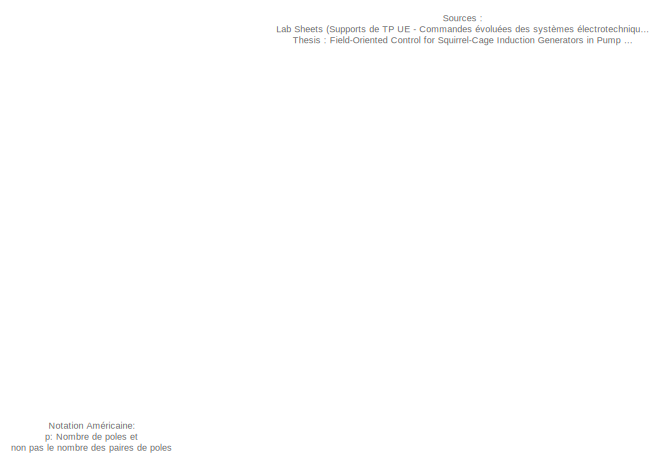
[diagram: root canvas - part 1/4, top center region]
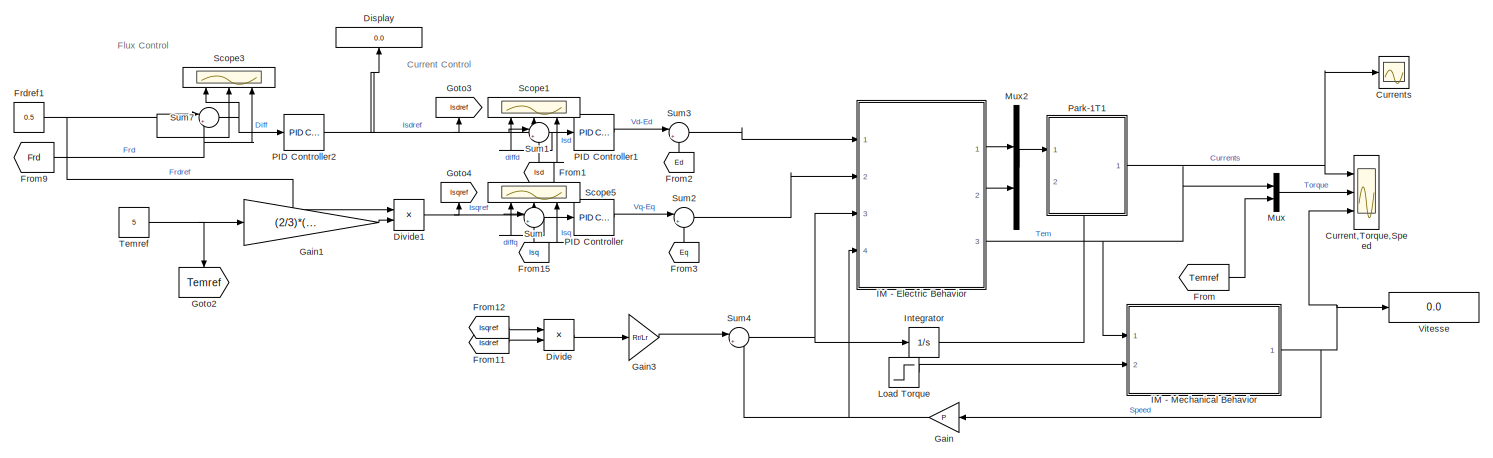
[diagram: root canvas - part 2/4, middle right region]
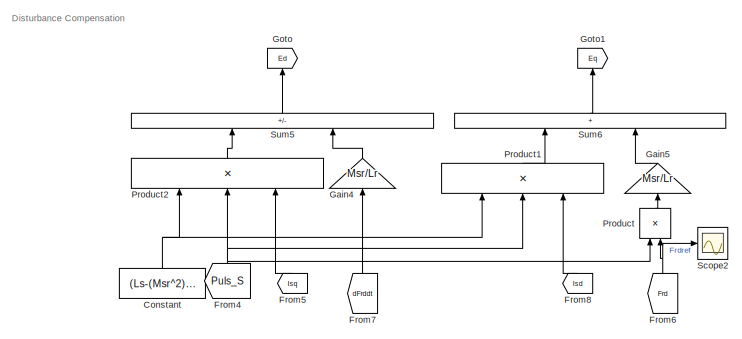
[diagram: root canvas - part 3/4, bottom center region]
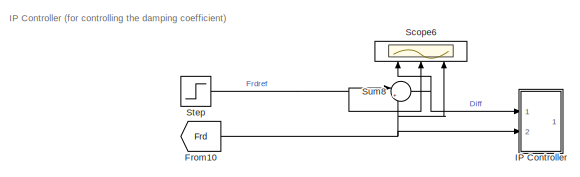
[diagram: root canvas - part 4/4, bottom left region]
MODEL slx_86597fa362f5
KIND model
CONFIG AbsTol = auto
CONFIG EnableMultiTasking = off
CONFIG FixedStep = 0.0001
CONFIG MaxStep = auto
CONFIG MinStep = auto
CONFIG RelTol = 1e-3
CONFIG SampleTimeConstraint = Unconstrained
CONFIG SolverName = FixedStepAuto
CONFIG StartTime = 0.0
CONFIG StopTime = 2
BLOCK [Constant] Constant
  NameLocation = right
  Value = (Ls-(Msr^2)/Lr)
BLOCK [Scope] Current,Torque,Speed
  Floating = off
  NumInputPorts = 3
  Ports = [3]
  ScopeSpecificationString = Simulink.scopes.TimeScopeBlockCfg('CurrentConfiguration', extmgr.ConfigurationSet(extmgr.Configuration('Core','General UI',true,'FigureColor','[1 1 1]'),extmgr.Configuration('Core','Source UI',true),extmgr.Configuration('Sources','WiredSimulink',true,'DataLoggingVariableName','ScopeData1'),extmgr.Configuration('Visuals','Time Domain',true,'SerializedDisplays',{struct('MinYLimReal','-2988.17313','M...<+3429ch>
BLOCK [Scope] Currents
  Floating = off
  NumInputPorts = 1
  Ports = [1]
  ScopeSpecificationString = Simulink.scopes.TimeScopeBlockCfg('CurrentConfiguration', extmgr.ConfigurationSet(extmgr.Configuration('Core','General UI',true),extmgr.Configuration('Core','Source UI',true),extmgr.Configuration('Sources','WiredSimulink',true),extmgr.Configuration('Visuals','Time Domain',true,'SerializedDisplays',{struct('MinYLimReal','-6.45339','MaxYLimReal','6.77917','YLabelReal','','MinYLimMag','0.00000','MaxY...<+1427ch>
BLOCK [Display] Display
  Decimation = 1
  NameLocation = right
  Ports = [1]
BLOCK [Product] Divide
  Inputs = */
  Ports = [2, 1]
BLOCK [Product] Divide1
  Inputs = /*
  Ports = [2, 1]
BLOCK [Constant] Frdref1
  Value = 0.5
BLOCK [From] From
  GotoTag = Temref
BLOCK [From] From1
  GotoTag = Isd
  NameLocation = right
  TagVisibility = global
BLOCK [From] From10
  Commented = on
  GotoTag = Frd
  TagVisibility = global
BLOCK [From] From11
  GotoTag = Isdref
BLOCK [From] From12
  GotoTag = Isqref
BLOCK [From] From15
  GotoTag = Isq
  NameLocation = right
  TagVisibility = global
BLOCK [From] From2
  GotoTag = Ed
  NameLocation = right
BLOCK [From] From3
  GotoTag = Eq
  NameLocation = right
BLOCK [From] From4
  GotoTag = Puls_S
  NameLocation = right
  TagVisibility = global
BLOCK [From] From5
  GotoTag = Isq
  NameLocation = right
  TagVisibility = global
BLOCK [From] From6
  GotoTag = Frd
  NameLocation = right
  TagVisibility = global
BLOCK [From] From7
  GotoTag = dFrddt
  NameLocation = right
  TagVisibility = global
BLOCK [From] From8
  GotoTag = Isd
  NameLocation = right
  TagVisibility = global
BLOCK [From] From9
  GotoTag = Frd
  TagVisibility = global
BLOCK [Gain] Gain
  Gain = P
BLOCK [Gain] Gain1
  Gain = (2/3)*(1/P)*(Lr/Msr)
BLOCK [Gain] Gain3
  Gain = Rr/Lr
BLOCK [Gain] Gain4
  Gain = Msr/Lr
  NameLocation = right
BLOCK [Gain] Gain5
  Gain = Msr/Lr
  NameLocation = right
BLOCK [Goto] Goto
  GotoTag = Ed
  NameLocation = right
BLOCK [Goto] Goto1
  GotoTag = Eq
  NameLocation = right
BLOCK [Goto] Goto2
  GotoTag = Temref
  NameLocation = left
BLOCK [Goto] Goto3
  GotoTag = Isdref
  NameLocation = right
BLOCK [Goto] Goto4
  GotoTag = Isqref
  NameLocation = right
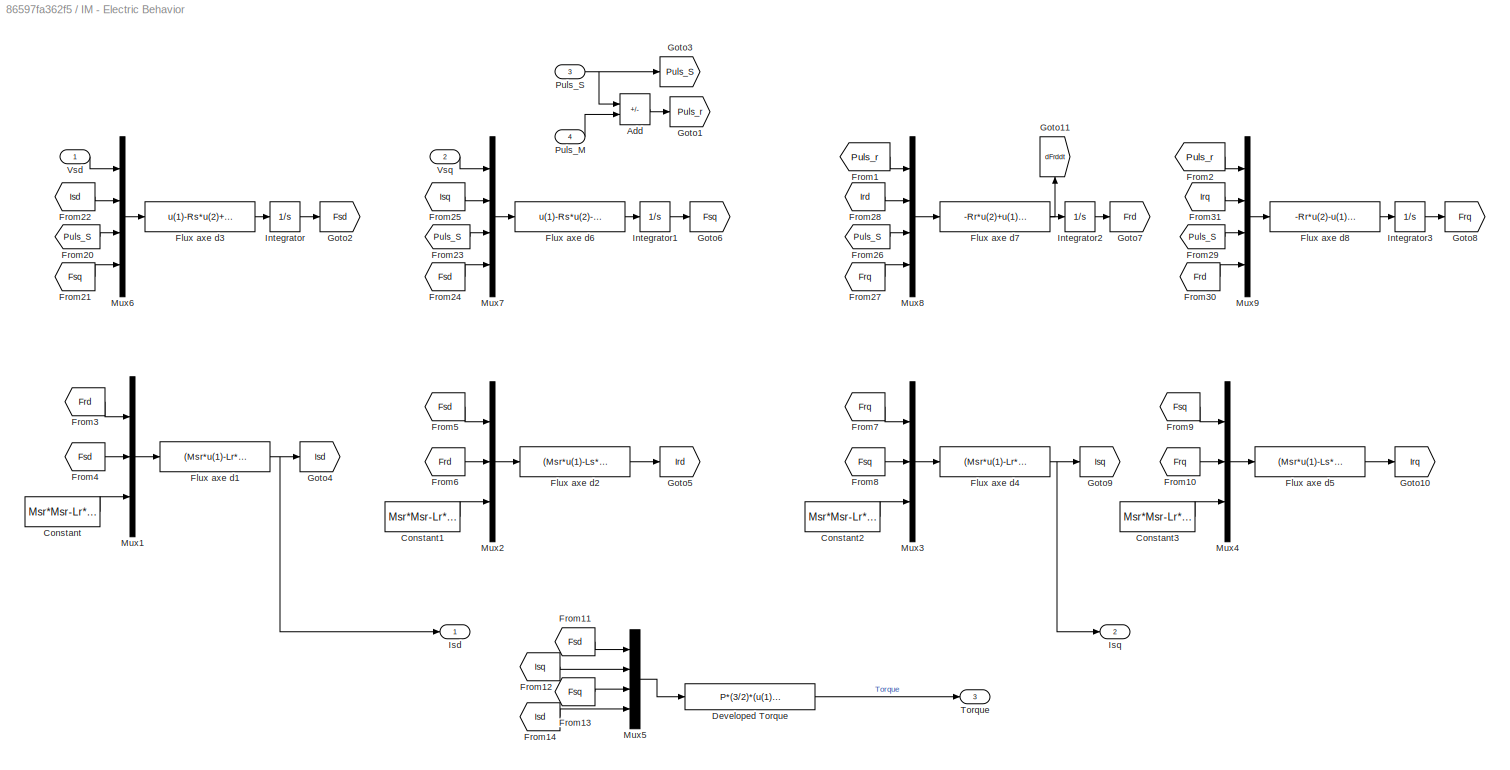
BLOCK [SubSystem] IM - Electric Behavior
  Ports = [4, 3]
  RequestExecContextInheritance = off
BLOCK [Sum] IM - Electric Behavior/Add
  IconShape = rectangular
  Inputs = +-
  Ports = [2, 1]
BLOCK [Constant] IM - Electric Behavior/Constant
  Value = Msr*Msr-Lr*Ls
BLOCK [Constant] IM - Electric Behavior/Constant1
  Value = Msr*Msr-Lr*Ls
BLOCK [Constant] IM - Electric Behavior/Constant2
  Value = Msr*Msr-Lr*Ls
BLOCK [Constant] IM - Electric Behavior/Constant3
  Value = Msr*Msr-Lr*Ls
BLOCK [Fcn] IM - Electric Behavior/Developed Torque
  Expr = P*(3/2)*(u(1)*u(2)-u(3)*u(4))
BLOCK [Fcn] IM - Electric Behavior/Flux axe d1
  Expr = (Msr*u(1)-Lr*u(2))/u(3)
BLOCK [Fcn] IM - Electric Behavior/Flux axe d2
  Expr = (Msr*u(1)-Ls*u(2))/u(3)
BLOCK [Fcn] IM - Electric Behavior/Flux axe d3
  Expr = u(1)-Rs*u(2)+u(3)*u(4)
BLOCK [Fcn] IM - Electric Behavior/Flux axe d4
  Expr = (Msr*u(1)-Lr*u(2))/u(3)
BLOCK [Fcn] IM - Electric Behavior/Flux axe d5
  Expr = (Msr*u(1)-Ls*u(2))/u(3)
BLOCK [Fcn] IM - Electric Behavior/Flux axe d6
  Expr = u(1)-Rs*u(2)-u(3)*u(4)
BLOCK [Fcn] IM - Electric Behavior/Flux axe d7
  Expr = -Rr*u(2)+u(1)*u(4)
BLOCK [Fcn] IM - Electric Behavior/Flux axe d8
  Expr = -Rr*u(2)-u(1)*u(4)
BLOCK [From] IM - Electric Behavior/From1
  GotoTag = Puls_r
BLOCK [From] IM - Electric Behavior/From10
  GotoTag = Frq
BLOCK [From] IM - Electric Behavior/From11
  GotoTag = Fsd
BLOCK [From] IM - Electric Behavior/From12
  GotoTag = Isq
  TagVisibility = global
BLOCK [From] IM - Electric Behavior/From13
  GotoTag = Fsq
BLOCK [From] IM - Electric Behavior/From14
  GotoTag = Isd
  TagVisibility = global
BLOCK [From] IM - Electric Behavior/From2
  GotoTag = Puls_r
BLOCK [From] IM - Electric Behavior/From20
  GotoTag = Puls_S
  IconDisplay = Signal name
  TagVisibility = global
BLOCK [From] IM - Electric Behavior/From21
  GotoTag = Fsq
BLOCK [From] IM - Electric Behavior/From22
  GotoTag = Isd
  TagVisibility = global
BLOCK [From] IM - Electric Behavior/From23
  GotoTag = Puls_S
  IconDisplay = Signal name
  TagVisibility = global
BLOCK [From] IM - Electric Behavior/From24
  GotoTag = Fsd
BLOCK [From] IM - Electric Behavior/From25
  GotoTag = Isq
  TagVisibility = global
BLOCK [From] IM - Electric Behavior/From26
  GotoTag = Puls_S
  IconDisplay = Signal name
  TagVisibility = global
BLOCK [From] IM - Electric Behavior/From27
  GotoTag = Frq
BLOCK [From] IM - Electric Behavior/From28
  GotoTag = Ird
BLOCK [From] IM - Electric Behavior/From29
  GotoTag = Puls_S
  IconDisplay = Signal name
  TagVisibility = global
BLOCK [From] IM - Electric Behavior/From3
  GotoTag = Frd
  TagVisibility = global
BLOCK [From] IM - Electric Behavior/From30
  GotoTag = Frd
  TagVisibility = global
BLOCK [From] IM - Electric Behavior/From31
  GotoTag = Irq
BLOCK [From] IM - Electric Behavior/From4
  GotoTag = Fsd
BLOCK [From] IM - Electric Behavior/From5
  GotoTag = Fsd
BLOCK [From] IM - Electric Behavior/From6
  GotoTag = Frd
  TagVisibility = global
BLOCK [From] IM - Electric Behavior/From7
  GotoTag = Frq
BLOCK [From] IM - Electric Behavior/From8
  GotoTag = Fsq
BLOCK [From] IM - Electric Behavior/From9
  GotoTag = Fsq
BLOCK [Goto] IM - Electric Behavior/Goto1
  GotoTag = Puls_r
BLOCK [Goto] IM - Electric Behavior/Goto10
  GotoTag = Irq
BLOCK [Goto] IM - Electric Behavior/Goto11
  GotoTag = dFrddt
  NameLocation = right
  TagVisibility = global
BLOCK [Goto] IM - Electric Behavior/Goto2
  GotoTag = Fsd
BLOCK [Goto] IM - Electric Behavior/Goto3
  GotoTag = Puls_S
  TagVisibility = global
BLOCK [Goto] IM - Electric Behavior/Goto4
  GotoTag = Isd
  TagVisibility = global
BLOCK [Goto] IM - Electric Behavior/Goto5
  GotoTag = Ird
BLOCK [Goto] IM - Electric Behavior/Goto6
  GotoTag = Fsq
BLOCK [Goto] IM - Electric Behavior/Goto7
  GotoTag = Frd
  TagVisibility = global
BLOCK [Goto] IM - Electric Behavior/Goto8
  GotoTag = Frq
BLOCK [Goto] IM - Electric Behavior/Goto9
  GotoTag = Isq
  TagVisibility = global
BLOCK [Integrator] IM - Electric Behavior/Integrator
  Ports = [1, 1]
BLOCK [Integrator] IM - Electric Behavior/Integrator1
  Ports = [1, 1]
BLOCK [Integrator] IM - Electric Behavior/Integrator2
  Ports = [1, 1]
BLOCK [Integrator] IM - Electric Behavior/Integrator3
  Ports = [1, 1]
BLOCK [Outport] IM - Electric Behavior/Isd
BLOCK [Outport] IM - Electric Behavior/Isq
  Port = 2
BLOCK [Mux] IM - Electric Behavior/Mux1
  DisplayOption = bar
  Inputs = 3
  Ports = [3, 1]
BLOCK [Mux] IM - Electric Behavior/Mux2
  DisplayOption = bar
  Inputs = 3
  Ports = [3, 1]
BLOCK [Mux] IM - Electric Behavior/Mux3
  DisplayOption = bar
  Inputs = 3
  Ports = [3, 1]
BLOCK [Mux] IM - Electric Behavior/Mux4
  DisplayOption = bar
  Inputs = 3
  Ports = [3, 1]
BLOCK [Mux] IM - Electric Behavior/Mux5
  DisplayOption = bar
  Ports = [4, 1]
BLOCK [Mux] IM - Electric Behavior/Mux6
  DisplayOption = bar
  Ports = [4, 1]
BLOCK [Mux] IM - Electric Behavior/Mux7
  DisplayOption = bar
  Ports = [4, 1]
BLOCK [Mux] IM - Electric Behavior/Mux8
  DisplayOption = bar
  Ports = [4, 1]
BLOCK [Mux] IM - Electric Behavior/Mux9
  DisplayOption = bar
  Ports = [4, 1]
BLOCK [Inport] IM - Electric Behavior/Puls_M
  Port = 4
BLOCK [Inport] IM - Electric Behavior/Puls_S
  Port = 3
BLOCK [Outport] IM - Electric Behavior/Torque
  Port = 3
BLOCK [Inport] IM - Electric Behavior/Vsd
BLOCK [Inport] IM - Electric Behavior/Vsq
  Port = 2
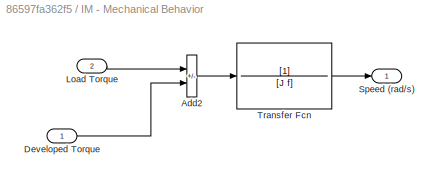
BLOCK [SubSystem] IM - Mechanical Behavior
  Ports = [2, 1]
  RequestExecContextInheritance = off
BLOCK [Sum] IM - Mechanical Behavior/Add2
  IconShape = rectangular
  Inputs = -+
  Ports = [2, 1]
BLOCK [Inport] IM - Mechanical Behavior/Developed Torque
BLOCK [Inport] IM - Mechanical Behavior/Load Torque
  Port = 2
BLOCK [Outport] IM - Mechanical Behavior/Speed (rad//s)
BLOCK [TransferFcn] IM - Mechanical Behavior/Transfer Fcn
  Denominator = [J f]
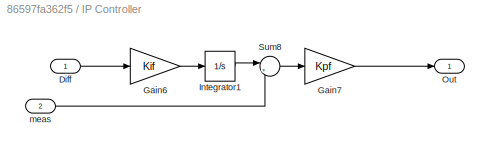
BLOCK [SubSystem] IP Controller
  Commented = on
  Ports = [2, 1]
  RequestExecContextInheritance = off
BLOCK [Inport] IP Controller/Diff
BLOCK [Gain] IP Controller/Gain6
  Gain = Kif
BLOCK [Gain] IP Controller/Gain7
  Gain = Kpf
BLOCK [Integrator] IP Controller/Integrator1
  InitialCondition = 0.5/Msr
  Ports = [1, 1]
BLOCK [Outport] IP Controller/Out
BLOCK [Sum] IP Controller/Sum8
  Inputs = |+-
  Ports = [2, 1]
BLOCK [Inport] IP Controller/meas
  Port = 2
BLOCK [Integrator] Integrator
  Ports = [1, 1]
BLOCK [Step] Load Torque
  After = 0
  SampleTime = 0
  Time = 2
BLOCK [Mux] Mux
  DisplayOption = bar
  Inputs = 2
  Ports = [2, 1]
BLOCK [Mux] Mux2
  DisplayOption = bar
  Inputs = 2
  Ports = [2, 1]
BLOCK [Reference] PID Controller  REF=slpidlib/PID Controller
  Ports = [1, 1]
  SourceBlock = slpidlib/PID Controller
  SourceProductBaseCode = SL
  SourceType = PID 1dof
BLOCK [Reference] PID Controller1  REF=slpidlib/PID Controller
  Ports = [1, 1]
  SourceBlock = slpidlib/PID Controller
  SourceProductBaseCode = SL
  SourceType = PID 1dof
BLOCK [Reference] PID Controller2  REF=slpidlib/PID Controller
  Ports = [1, 1]
  SourceBlock = slpidlib/PID Controller
  SourceProductBaseCode = SL
  SourceType = PID 1dof
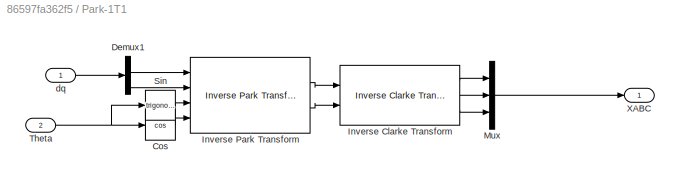
BLOCK [SubSystem] Park-1T1
  PortSchema = {"entries":[{"content":{"sides":[{"content":{"connectorIds":["In1"]},"type":"ConnectorPlacement.EquallySpacedRectSide","uuid":"c9ca9a07-e30b-41ed-8e45-9927ea626236"},{"content":{"connectorIds":["Out1"],"side":"RIGHT"},"type":"ConnectorPlacement.EquallySpacedRectSide","uuid":"8fc3e4f4-8f75-483a-a7a4-7af5e29f18e2"},{"content":{"connectorIds":[],"side":"TOP"},"type":"ConnectorPlacement.EquallySpacedR...<+533ch>
  Ports = [2, 1]
  RequestExecContextInheritance = off
BLOCK [Trigonometry] Park-1T1/Cos
  Operator = cos
  Ports = [1, 1]
BLOCK [Demux] Park-1T1/Demux1
  Outputs = 2
  Ports = [1, 2]
BLOCK [Reference] Park-1T1/Inverse Clarke Transform  REF=mcbcontrolslib/Inverse Clarke Transform
  Ports = [2, 3]
  SourceBlock = mcbcontrolslib/Inverse Clarke Transform
  SourceProductBaseCode = MT
  SourceType = Inverse Clarke Transform
BLOCK [Reference] Park-1T1/Inverse Park Transform  REF=mcbcontrolslib/Inverse Park Transform
  Ports = [4, 2]
  SourceBlock = mcbcontrolslib/Inverse Park Transform
  SourceProductBaseCode = MT
  SourceType = Inverse Park Transform
BLOCK [Mux] Park-1T1/Mux
  DisplayOption = bar
  Inputs = 3
  Ports = [3, 1]
BLOCK [Trigonometry] Park-1T1/Sin
  Ports = [1, 1]
BLOCK [Inport] Park-1T1/Theta
  Port = 2
BLOCK [Outport] Park-1T1/XABC
BLOCK [Inport] Park-1T1/dq
BLOCK [Product] Product
  NameLocation = right
  Ports = [2, 1]
BLOCK [Product] Product1
  Inputs = 3
  NameLocation = right
  Ports = [3, 1]
BLOCK [Product] Product2
  Inputs = 3
  NameLocation = right
  Ports = [3, 1]
BLOCK [Scope] Scope1
  Floating = off
  NameLocation = right
  NumInputPorts = 3
  Ports = [3]
  ScopeSpecificationString = Simulink.scopes.TimeScopeBlockCfg('CurrentConfiguration', extmgr.ConfigurationSet(extmgr.Configuration('Core','General UI',true,'FigureColor',[1 1 1]),extmgr.Configuration('Core','Source UI',true),extmgr.Configuration('Sources','WiredSimulink',true,'DataLoggingVariableName','ScopeData3'),extmgr.Configuration('Visuals','Time Domain',true,'SerializedDisplays',{struct('MinYLimReal','-92.15872','MaxYL...<+2674ch>
BLOCK [Scope] Scope2
  Floating = off
  NumInputPorts = 1
  Ports = [1]
  ScopeSpecificationString = Simulink.scopes.TimeScopeBlockCfg('CurrentConfiguration', extmgr.ConfigurationSet(extmgr.Configuration('Core','General UI',true),extmgr.Configuration('Core','Source UI',true),extmgr.Configuration('Sources','WiredSimulink',true,'DataLoggingVariableName','ScopeData3'),extmgr.Configuration('Visuals','Time Domain',true,'SerializedDisplays',{struct('MinYLimReal','-0.02032','MaxYLimReal','0.52346','YLab...<+1444ch>
BLOCK [Scope] Scope3
  Floating = off
  NameLocation = right
  NumInputPorts = 3
  Ports = [3]
  ScopeSpecificationString = Simulink.scopes.TimeScopeBlockCfg('CurrentConfiguration', extmgr.ConfigurationSet(extmgr.Configuration('Core','General UI',true,'FigureColor',[1 1 1]),extmgr.Configuration('Core','Source UI',true),extmgr.Configuration('Sources','WiredSimulink',true,'DataLoggingVariableName','ScopeData1'),extmgr.Configuration('Visuals','Time Domain',true,'SerializedDisplays',{struct('MinYLimReal','-0.0625','MaxYLim...<+2627ch>
BLOCK [Scope] Scope5
  Floating = off
  NameLocation = right
  NumInputPorts = 3
  Ports = [3]
  ScopeSpecificationString = Simulink.scopes.TimeScopeBlockCfg('CurrentConfiguration', extmgr.ConfigurationSet(extmgr.Configuration('Core','General UI',true,'FigureColor',[1 1 1]),extmgr.Configuration('Core','Source UI',true),extmgr.Configuration('Sources','WiredSimulink',true,'DataLoggingVariableName','ScopeData4'),extmgr.Configuration('Visuals','Time Domain',true,'SerializedDisplays',{struct('MinYLimReal','-0.0313','MaxYLim...<+2647ch>
BLOCK [Scope] Scope6
  Commented = on
  Floating = off
  NameLocation = right
  NumInputPorts = 3
  Ports = [3]
  ScopeSpecificationString = Simulink.scopes.TimeScopeBlockCfg('CurrentConfiguration', extmgr.ConfigurationSet(extmgr.Configuration('Core','General UI',true,'FigureColor',[1 1 1]),extmgr.Configuration('Core','Source UI',true),extmgr.Configuration('Sources','WiredSimulink',true,'DataLoggingVariableName','ScopeData3'),extmgr.Configuration('Visuals','Time Domain',true,'SerializedDisplays',{struct('MinYLimReal','-1.47378','MaxYLi...<+2686ch>
BLOCK [Step] Step
  Before = 0.5
  Commented = on
  SampleTime = 0
BLOCK [Sum] Sum
  Inputs = |+-
  Ports = [2, 1]
BLOCK [Sum] Sum1
  Inputs = |+-
  Ports = [2, 1]
BLOCK [Sum] Sum2
  Inputs = |++
  Ports = [2, 1]
BLOCK [Sum] Sum3
  Inputs = |++
  Ports = [2, 1]
BLOCK [Sum] Sum4
  Inputs = |++
  Ports = [2, 1]
BLOCK [Sum] Sum5
  IconShape = rectangular
  Inputs = -+
  NameLocation = right
  Ports = [2, 1]
BLOCK [Sum] Sum6
  IconShape = rectangular
  NameLocation = right
  Ports = [2, 1]
BLOCK [Sum] Sum7
  Inputs = |+-
  Ports = [2, 1]
BLOCK [Sum] Sum8
  Commented = on
  Inputs = |+-
  Ports = [2, 1]
BLOCK [Constant] Temref
  Value = 5
BLOCK [Display] Vitesse
  Decimation = 1
  Ports = [1]
ANNOTATION (root): Current Control
ANNOTATION (root): Disturbance Compensation
ANNOTATION (root): Flux Control
ANNOTATION (root): IP Controller (for controlling the damping coefficient)
ANNOTATION (root): Notation Américaine: p: Nombre de poles et non pas le nombre des paires de poles
ANNOTATION (root): Sources : Lab Sheets (Supports de TP UE - Commandes évoluées des systèmes électrotechniques) Thesis : Field-Oriented Control for Squirrel-Cage Induction Generators in Pump as Turbines Applications - Samuel Ferreira Amaro
NET Constant:1 -> Product1:1, Product2:1
NET Divide1:1 -> Goto4:1, Scope5:2, Sum:1
LINE Divide:1 -> Gain3:1
NET Frdref1:1 -> Divide1:1, Scope3:2, Sum7:1
NET From10:1 -> IP Controller:2, Scope6:3, Sum8:2
LINE From11:1 -> Divide:2
LINE From12:1 -> Divide:1
NET From15:1 -> Scope5:3, Sum:2
NET From1:1 -> Scope1:3, Sum1:2
LINE From2:1 -> Sum3:2
LINE From3:1 -> Sum2:2
NET From4:1 -> Product1:2, Product2:2, Product:1
LINE From5:1 -> Product2:3
NET From6:1 -> Product:2, Scope2:1
LINE From7:1 -> Gain4:1
LINE From8:1 -> Product1:3
NET From9:1 -> Scope3:3, Sum7:2
LINE From:1 -> Mux:2
LINE Gain1:1 -> Divide1:2
LINE Gain3:1 -> Sum4:1
LINE Gain4:1 -> Sum5:2
LINE Gain5:1 -> Sum6:2
NET Gain:1 -> IM - Electric Behavior:4, Sum4:2
LINE IM - Electric Behavior/Add:1 -> IM - Electric Behavior/Goto1:1
LINE IM - Electric Behavior/Constant1:1 -> IM - Electric Behavior/Mux2:3
LINE IM - Electric Behavior/Constant2:1 -> IM - Electric Behavior/Mux3:3
LINE IM - Electric Behavior/Constant3:1 -> IM - Electric Behavior/Mux4:3
LINE IM - Electric Behavior/Constant:1 -> IM - Electric Behavior/Mux1:3
LINE IM - Electric Behavior/Developed Torque:1 -> IM - Electric Behavior/Torque:1
NET IM - Electric Behavior/Flux axe d1:1 -> IM - Electric Behavior/Goto4:1, IM - Electric Behavior/Isd:1
LINE IM - Electric Behavior/Flux axe d2:1 -> IM - Electric Behavior/Goto5:1
LINE IM - Electric Behavior/Flux axe d3:1 -> IM - Electric Behavior/Integrator:1
NET IM - Electric Behavior/Flux axe d4:1 -> IM - Electric Behavior/Goto9:1, IM - Electric Behavior/Isq:1
LINE IM - Electric Behavior/Flux axe d5:1 -> IM - Electric Behavior/Goto10:1
LINE IM - Electric Behavior/Flux axe d6:1 -> IM - Electric Behavior/Integrator1:1
NET IM - Electric Behavior/Flux axe d7:1 -> IM - Electric Behavior/Goto11:1, IM - Electric Behavior/Integrator2:1
LINE IM - Electric Behavior/Flux axe d8:1 -> IM - Electric Behavior/Integrator3:1
LINE IM - Electric Behavior/From10:1 -> IM - Electric Behavior/Mux4:2
LINE IM - Electric Behavior/From11:1 -> IM - Electric Behavior/Mux5:1
LINE IM - Electric Behavior/From12:1 -> IM - Electric Behavior/Mux5:2
LINE IM - Electric Behavior/From13:1 -> IM - Electric Behavior/Mux5:3
LINE IM - Electric Behavior/From14:1 -> IM - Electric Behavior/Mux5:4
LINE IM - Electric Behavior/From1:1 -> IM - Electric Behavior/Mux8:1
LINE IM - Electric Behavior/From20:1 -> IM - Electric Behavior/Mux6:3
LINE IM - Electric Behavior/From21:1 -> IM - Electric Behavior/Mux6:4
LINE IM - Electric Behavior/From22:1 -> IM - Electric Behavior/Mux6:2
LINE IM - Electric Behavior/From23:1 -> IM - Electric Behavior/Mux7:3
LINE IM - Electric Behavior/From24:1 -> IM - Electric Behavior/Mux7:4
LINE IM - Electric Behavior/From25:1 -> IM - Electric Behavior/Mux7:2
LINE IM - Electric Behavior/From26:1 -> IM - Electric Behavior/Mux8:3
LINE IM - Electric Behavior/From27:1 -> IM - Electric Behavior/Mux8:4
LINE IM - Electric Behavior/From28:1 -> IM - Electric Behavior/Mux8:2
LINE IM - Electric Behavior/From29:1 -> IM - Electric Behavior/Mux9:3
LINE IM - Electric Behavior/From2:1 -> IM - Electric Behavior/Mux9:1
LINE IM - Electric Behavior/From30:1 -> IM - Electric Behavior/Mux9:4
LINE IM - Electric Behavior/From31:1 -> IM - Electric Behavior/Mux9:2
LINE IM - Electric Behavior/From3:1 -> IM - Electric Behavior/Mux1:1
LINE IM - Electric Behavior/From4:1 -> IM - Electric Behavior/Mux1:2
LINE IM - Electric Behavior/From5:1 -> IM - Electric Behavior/Mux2:1
LINE IM - Electric Behavior/From6:1 -> IM - Electric Behavior/Mux2:2
LINE IM - Electric Behavior/From7:1 -> IM - Electric Behavior/Mux3:1
LINE IM - Electric Behavior/From8:1 -> IM - Electric Behavior/Mux3:2
LINE IM - Electric Behavior/From9:1 -> IM - Electric Behavior/Mux4:1
LINE IM - Electric Behavior/Integrator1:1 -> IM - Electric Behavior/Goto6:1
LINE IM - Electric Behavior/Integrator2:1 -> IM - Electric Behavior/Goto7:1
LINE IM - Electric Behavior/Integrator3:1 -> IM - Electric Behavior/Goto8:1
LINE IM - Electric Behavior/Integrator:1 -> IM - Electric Behavior/Goto2:1
LINE IM - Electric Behavior/Mux1:1 -> IM - Electric Behavior/Flux axe d1:1
LINE IM - Electric Behavior/Mux2:1 -> IM - Electric Behavior/Flux axe d2:1
LINE IM - Electric Behavior/Mux3:1 -> IM - Electric Behavior/Flux axe d4:1
LINE IM - Electric Behavior/Mux4:1 -> IM - Electric Behavior/Flux axe d5:1
LINE IM - Electric Behavior/Mux5:1 -> IM - Electric Behavior/Developed Torque:1
LINE IM - Electric Behavior/Mux6:1 -> IM - Electric Behavior/Flux axe d3:1
LINE IM - Electric Behavior/Mux7:1 -> IM - Electric Behavior/Flux axe d6:1
LINE IM - Electric Behavior/Mux8:1 -> IM - Electric Behavior/Flux axe d7:1
LINE IM - Electric Behavior/Mux9:1 -> IM - Electric Behavior/Flux axe d8:1
LINE IM - Electric Behavior/Puls_M:1 -> IM - Electric Behavior/Add:2
NET IM - Electric Behavior/Puls_S:1 -> IM - Electric Behavior/Add:1, IM - Electric Behavior/Goto3:1
LINE IM - Electric Behavior/Vsd:1 -> IM - Electric Behavior/Mux6:1
LINE IM - Electric Behavior/Vsq:1 -> IM - Electric Behavior/Mux7:1
LINE IM - Electric Behavior:1 -> Mux2:1
LINE IM - Electric Behavior:2 -> Mux2:2
NET IM - Electric Behavior:3 -> IM - Mechanical Behavior:1, Mux:1
LINE IM - Mechanical Behavior/Add2:1 -> IM - Mechanical Behavior/Transfer Fcn:1
LINE IM - Mechanical Behavior/Developed Torque:1 -> IM - Mechanical Behavior/Add2:2
LINE IM - Mechanical Behavior/Load Torque:1 -> IM - Mechanical Behavior/Add2:1
LINE IM - Mechanical Behavior/Transfer Fcn:1 -> IM - Mechanical Behavior/Speed (rad//s):1
NET IM - Mechanical Behavior:1 -> Current,Torque,Speed:3, Gain:1, Vitesse:1
LINE IP Controller/Diff:1 -> IP Controller/Gain6:1
LINE IP Controller/Gain6:1 -> IP Controller/Integrator1:1
LINE IP Controller/Gain7:1 -> IP Controller/Out:1
LINE IP Controller/Integrator1:1 -> IP Controller/Sum8:1
LINE IP Controller/Sum8:1 -> IP Controller/Gain7:1
LINE IP Controller/meas:1 -> IP Controller/Sum8:2
LINE Integrator:1 -> Park-1T1:2
LINE Load Torque:1 -> IM - Mechanical Behavior:2
LINE Mux2:1 -> Park-1T1:1
LINE Mux:1 -> Current,Torque,Speed:2
LINE PID Controller1:1 -> Sum3:1
NET PID Controller2:1 -> Display:1, Goto3:1, Scope1:2, Sum1:1
LINE PID Controller:1 -> Sum2:1
LINE Park-1T1/Cos:1 -> Park-1T1/Inverse Park Transform:4
LINE Park-1T1/Demux1:1 -> Park-1T1/Inverse Park Transform:1
LINE Park-1T1/Demux1:2 -> Park-1T1/Inverse Park Transform:2
LINE Park-1T1/Inverse Clarke Transform:1 -> Park-1T1/Mux:1
LINE Park-1T1/Inverse Clarke Transform:2 -> Park-1T1/Mux:2
LINE Park-1T1/Inverse Clarke Transform:3 -> Park-1T1/Mux:3
LINE Park-1T1/Inverse Park Transform:1 -> Park-1T1/Inverse Clarke Transform:1
LINE Park-1T1/Inverse Park Transform:2 -> Park-1T1/Inverse Clarke Transform:2
LINE Park-1T1/Mux:1 -> Park-1T1/XABC:1
LINE Park-1T1/Sin:1 -> Park-1T1/Inverse Park Transform:3
NET Park-1T1/Theta:1 -> Park-1T1/Cos:1, Park-1T1/Sin:1
LINE Park-1T1/dq:1 -> Park-1T1/Demux1:1
NET Park-1T1:1 -> Current,Torque,Speed:1, Currents:1
LINE Product1:1 -> Sum6:1
LINE Product2:1 -> Sum5:1
LINE Product:1 -> Gain5:1
NET Step:1 -> Scope6:2, Sum8:1
NET Sum1:1 -> PID Controller1:1, Scope1:1
LINE Sum2:1 -> IM - Electric Behavior:2
LINE Sum3:1 -> IM - Electric Behavior:1
NET Sum4:1 -> IM - Electric Behavior:3, Integrator:1
LINE Sum5:1 -> Goto:1
LINE Sum6:1 -> Goto1:1
NET Sum7:1 -> PID Controller2:1, Scope3:1
NET Sum8:1 -> IP Controller:1, Scope6:1
NET Sum:1 -> PID Controller:1, Scope5:1
NET Temref:1 -> Gain1:1, Goto2:1
note: NET lines group one-source signal fan-out (src -> all destinations, sorted); 1:1 wires keep LINE
